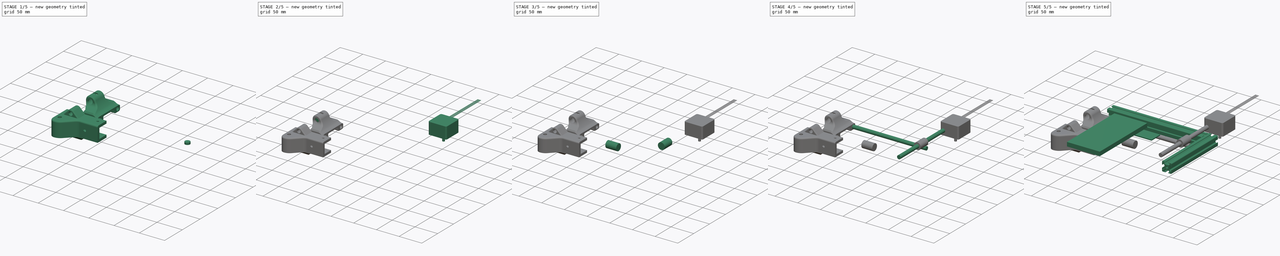
[diagram: build sequence overview — one tinted view per stage of 5, left to right]
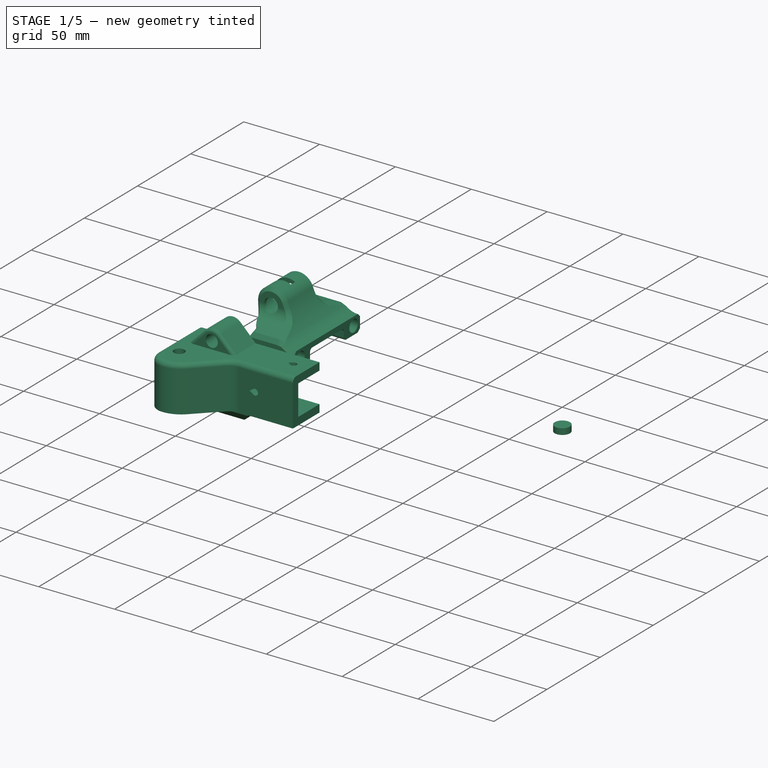
[diagram: stage 1 of 5 — iso view after this stage's code; geometry added in this stage tinted green]
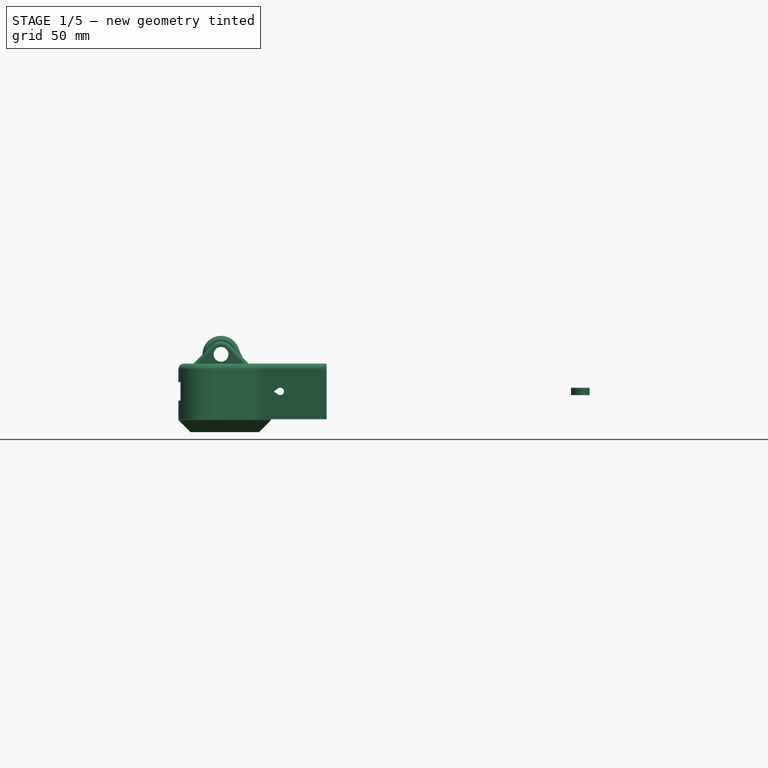
[diagram: stage 1 of 5 — front view after this stage's code; geometry added in this stage tinted green]
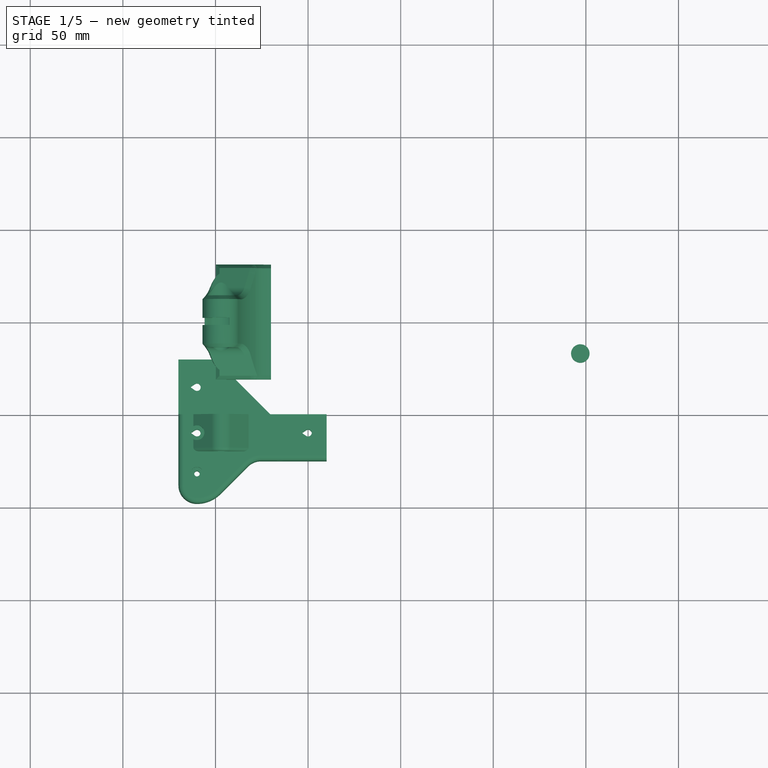
[diagram: stage 1 of 5 — top view after this stage's code; geometry added in this stage tinted green]
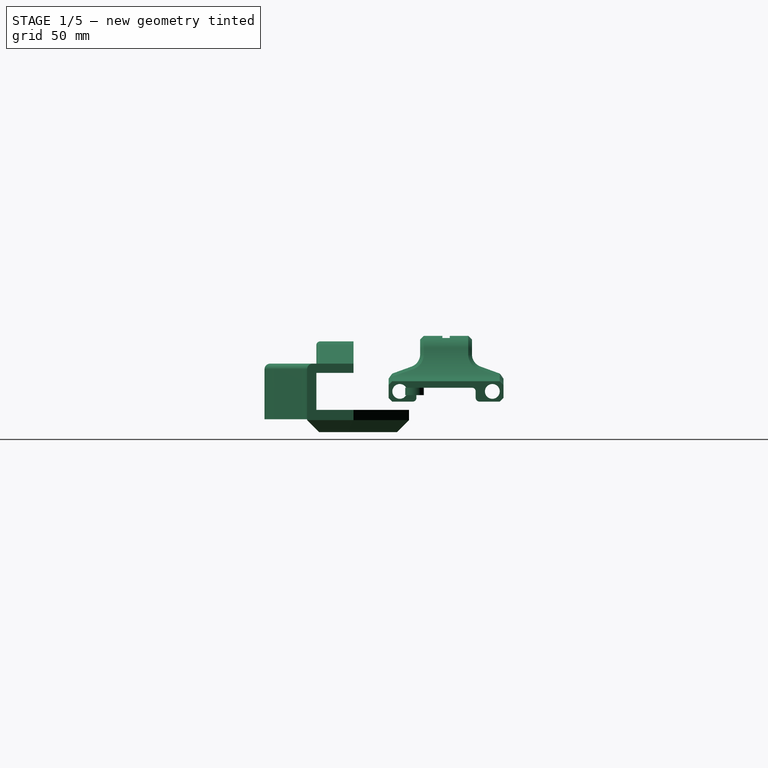
[diagram: stage 1 of 5 — right view after this stage's code; geometry added in this stage tinted green]
FCSTD DOCUMENT  (FreeCAD 0.16R4945 (Git))
Label: Assembly
License: All rights reserved
LicenseURL: http://en.wikipedia.org/wiki/All_rights_reserved
objects: Part::Mirroring×12, Part::Feature×6, App::DocumentObjectGroup×6, Part::Cylinder×5, Part::Box×2, Sketcher::SketchObject×2
note: 27 computed .brp shape members not serialized (recipe doc carries the construction recipe); baked Part::Feature solids carry a one-line shape summary decoded from their .brp

FEATURE [Sketcher::SketchObject] Sketch001  label="StringSection"
  Placement = pos=(-21,0,0) rot=(0.57735,0.57735,0.57735;2.0944rad)
  sketch-geometry (1):
    g0: Circle CenterX=6 CenterY=10 CenterZ=0 NormalX=0 NormalY=0 NormalZ=1 Radius=0.5
  constraints (3):
    c: DistanceY(g0) = 10
    c: DistanceX(g0) = 6
    c: Radius(g0) = 0.5
FEATURE [App::DocumentObjectGroup] Group  label="Base"
  Group = -> [Part__Mirroring,Part__Mirroring001]
FEATURE [App::DocumentObjectGroup] Group002  label="FishingString"
  Group = -> [Sketch,Sketch001]
FEATURE [App::DocumentObjectGroup] Group003  label="Motors"
  Group = -> [Part__Mirroring002]
FEATURE [App::DocumentObjectGroup] Group004  label="VisualReference"
  Group = -> [Part__Feature001]
FEATURE [Part::Cylinder] Cylinder004  label="623ZZ"
  Angle = 360
  Height = 4
  Placement = pos=(97,17,8) rot=(0,0,1;0rad)
  Radius = 5
FEATURE [Part::Mirroring] Part__Mirroring007  label="623ZZ (Mirror #8)"
  Base = (0,0,0)
  Normal = (0,1,0)
  Source = -> Cylinder004
FEATURE [App::DocumentObjectGroup] Group001  label="GuidingSystem"
  Group = -> [Part__Mirroring003,Part__Mirroring004,Part__Mirroring005,Part__Mirroring006,Part__Mirroring008,Part__Mirroring009]
FEATURE [Part::Feature] Pocket008001  label="Ycarriage"
  Placement = pos=(70,0,10) rot=(0,0,1;0rad)
  shape: bbox 37.5 x 62 x 35.5 mm, 93 faces (baked)
FEATURE [Part::Mirroring] Part__Mirroring010  label="Ycarriage (Mirror #11)"
  Base = (0,0,0)
  Normal = (1,0,0)
  Source = -> Pocket008001
FEATURE [Part::Feature] Pocket013001  label="IdlerHold"
  Placement = pos=(110,-60,10) rot=(0,0,1;0rad)
  shape: bbox 80.83 x 79.49 x 49.8 mm, 107 faces (baked)
FEATURE [Part::Mirroring] Part__Mirroring011  label="IdlerHold (Mirror #12)"
  Base = (0,0,0)
  Normal = (1,0,0)
  Source = -> Pocket013001
FEATURE [App::DocumentObjectGroup] Group005  label="Printable"
  Group = -> [Pocket008001,Part__Mirroring010,Pocket013001,Part__Mirroring011]
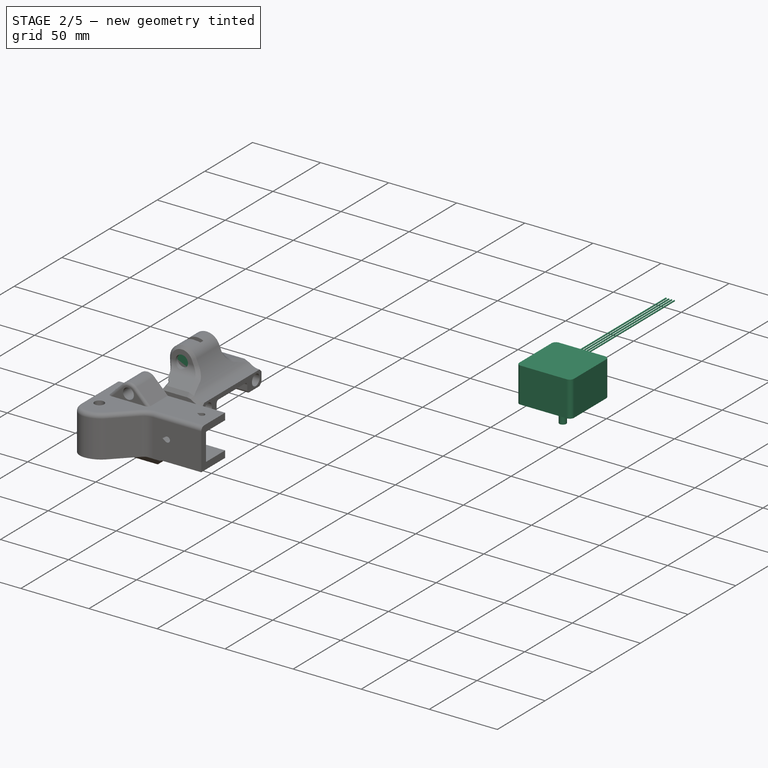
[diagram: stage 2 of 5 — iso view after this stage's code; geometry added in this stage tinted green]
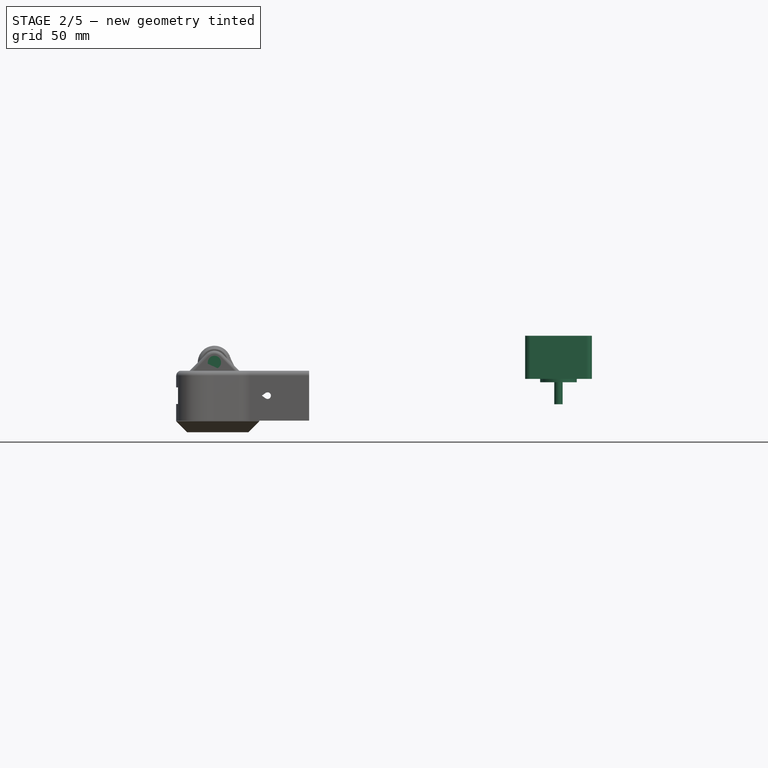
[diagram: stage 2 of 5 — front view after this stage's code; geometry added in this stage tinted green]
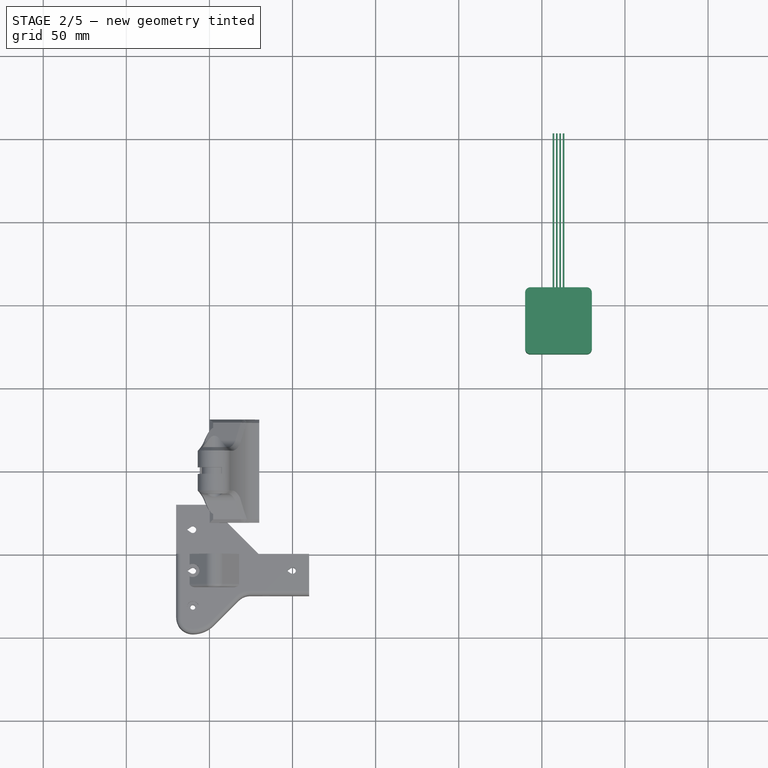
[diagram: stage 2 of 5 — top view after this stage's code; geometry added in this stage tinted green]
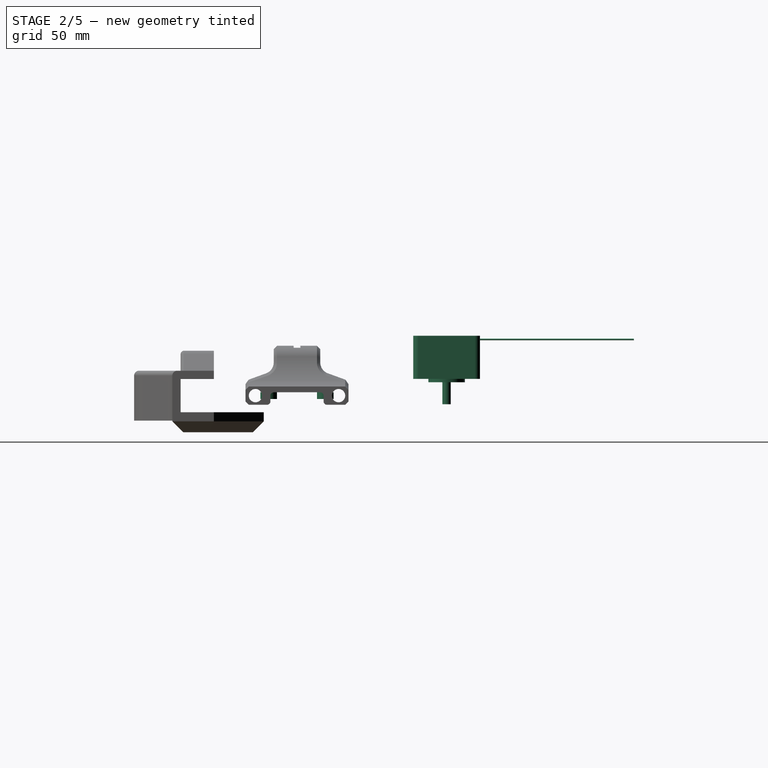
[diagram: stage 2 of 5 — right view after this stage's code; geometry added in this stage tinted green]
FEATURE [Part::Feature] Part__Feature001  label="BeverageCan"
  Placement = pos=(200,0,0) rot=(0,0,1;0rad)
  shape: bbox 66.1 x 66.1 x 115.2 mm, 53 faces (baked)
FEATURE [Part::Feature] Part__Feature002  label="4018X SNGL"
  Placement = pos=(-110,90,46) rot=(0,1,0;3.14159rad)
  shape: bbox 40.13 x 132.8 x 41.15 mm, 30 faces (baked)
FEATURE [Part::Mirroring] Part__Mirroring002  label="4018X SNGL (Mirror #3)"
  Base = (0,0,0)
  Normal = (1,0,0)
  Source = -> Part__Feature002
FEATURE [Part::Cylinder] Cylinder003  label="LM8UU001"
  Angle = 360
  Height = 24
  Placement = pos=(-97,12,30) rot=(1,0,0;1.5708rad)
  Radius = 7.5
FEATURE [Part::Mirroring] Part__Mirroring008  label="623ZZ (Mirror #9)"
  Base = (0,0,0)
  Normal = (1,0,0)
  Source = -> Cylinder004
FEATURE [Part::Mirroring] Part__Mirroring009  label="623ZZ (Mirror #10)"
  Base = (0,0,0)
  Normal = (1,0,0)
  Source = -> Part__Mirroring007
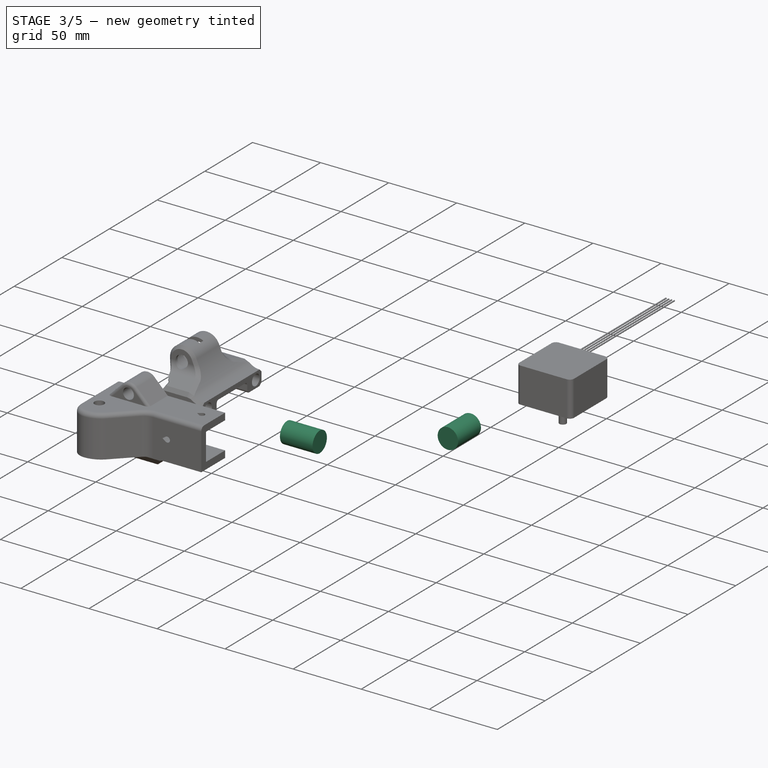
[diagram: stage 3 of 5 — iso view after this stage's code; geometry added in this stage tinted green]
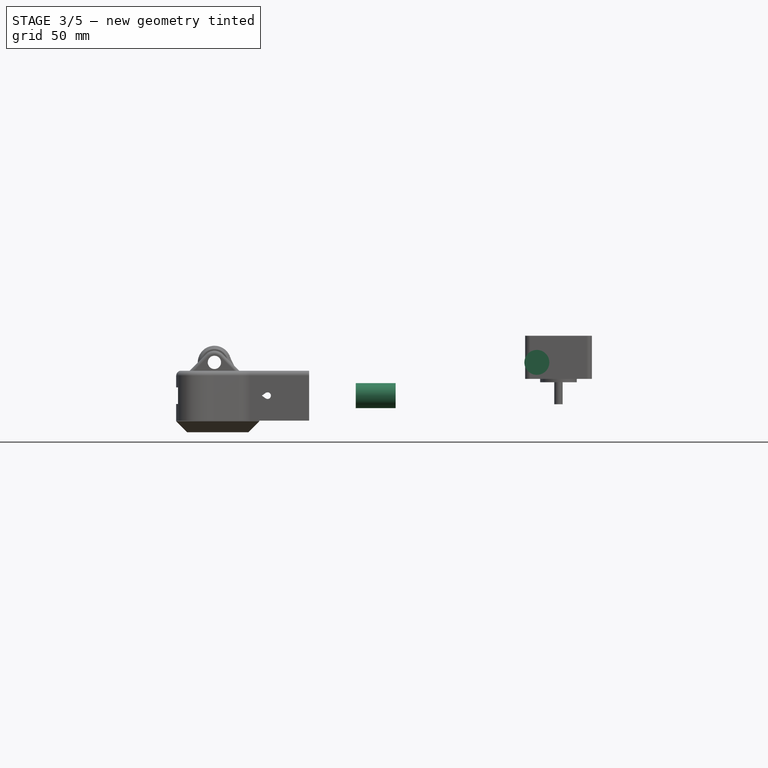
[diagram: stage 3 of 5 — front view after this stage's code; geometry added in this stage tinted green]
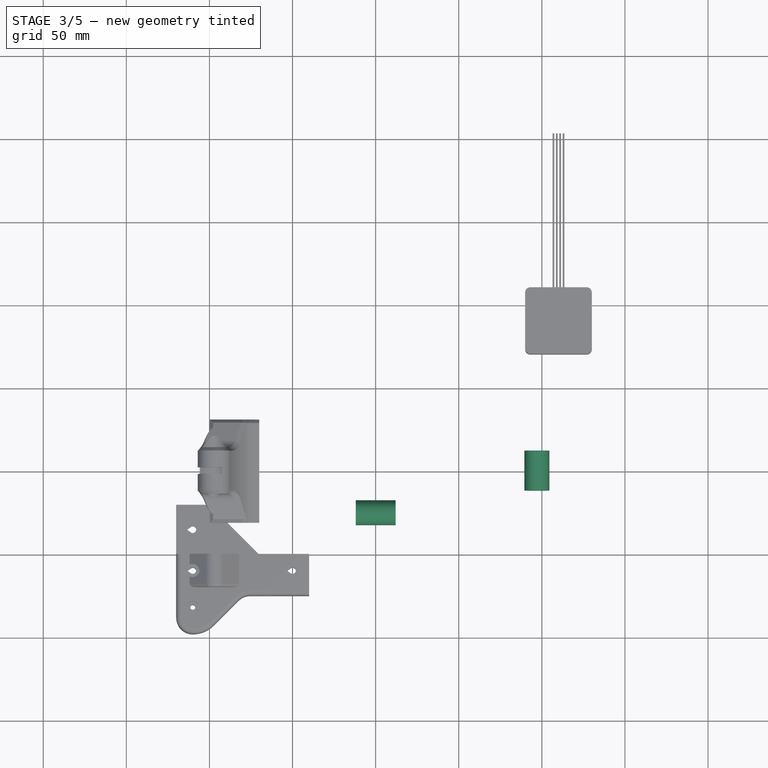
[diagram: stage 3 of 5 — top view after this stage's code; geometry added in this stage tinted green]
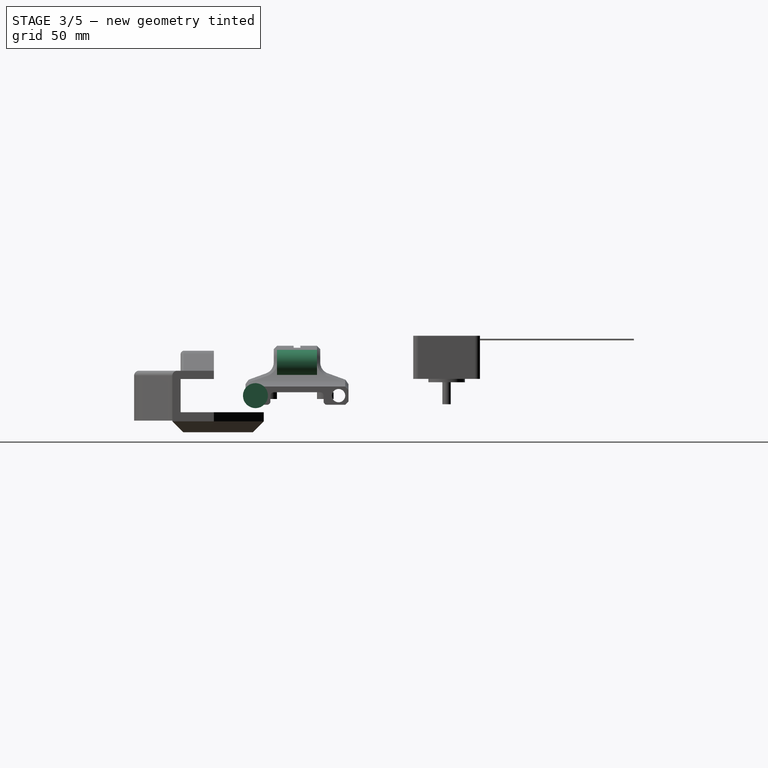
[diagram: stage 3 of 5 — right view after this stage's code; geometry added in this stage tinted green]
FEATURE [Sketcher::SketchObject] Sketch  label="StringPath"
  Placement = pos=(0,0,10) rot=(0,0,1;0rad)
  sketch-geometry (17):
    g0: ArcOfCircle CenterX=-110 CenterY=90 CenterZ=0 NormalX=0 NormalY=0 NormalZ=1 Radius=8 StartAngle=6.28318 EndAngle=9.42478
    g1: ArcOfCircle CenterX=110 CenterY=90 CenterZ=0 NormalX=0 NormalY=0 NormalZ=1 Radius=8 StartAngle=6.28319 EndAngle=9.42478
    g2: ArcOfCircle CenterX=110 CenterY=-82 CenterZ=0 NormalX=0 NormalY=0 NormalZ=1 Radius=8 StartAngle=3.14159 EndAngle=6.28319
    g3: ArcOfCircle CenterX=97 CenterY=-17 CenterZ=0 NormalX=0 NormalY=0 NormalZ=1 Radius=5 StartAngle=2.30718e-06 EndAngle=1.5708
    g4: ArcOfCircle CenterX=97 CenterY=17 CenterZ=0 NormalX=0 NormalY=0 NormalZ=1 Radius=5 StartAngle=4.71239 EndAngle=6.28319
    g5: ArcOfCircle CenterX=-97 CenterY=17 CenterZ=0 NormalX=0 NormalY=0 NormalZ=1 Radius=5 StartAngle=3.14159 EndAngle=4.71239
    g6: ArcOfCircle CenterX=-97 CenterY=-17 CenterZ=0 NormalX=0 NormalY=0 NormalZ=1 Radius=5 StartAngle=1.5708 EndAngle=3.14159
    g7: ArcOfCircle CenterX=-110 CenterY=-82 CenterZ=0 NormalX=0 NormalY=0 NormalZ=1 Radius=8 StartAngle=3.14159 EndAngle=6.28319
    g8: LineSegment StartX=-118 StartY=90 StartZ=0 EndX=-118 EndY=-82 EndZ=0
    g9: LineSegment StartX=-102 StartY=-17 StartZ=0 EndX=-102 EndY=-82 EndZ=0
    g10: LineSegment StartX=-97 StartY=-12 StartZ=0 EndX=97 EndY=-12 EndZ=0
    g11: LineSegment StartX=-102 StartY=90 StartZ=0 EndX=-102 EndY=17 EndZ=0
    g12: LineSegment StartX=102 StartY=90 StartZ=0 EndX=102 EndY=17 EndZ=0
    g13: LineSegment StartX=118 StartY=90 StartZ=0 EndX=118 EndY=-82 EndZ=0
    g14: LineSegment StartX=102 StartY=-82 StartZ=0 EndX=102 EndY=-17 EndZ=0
    g15: LineSegment StartX=-97 StartY=12 StartZ=0 EndX=-20.947 EndY=12 EndZ=0
    g16: LineSegment StartX=14.5397 StartY=12 StartZ=0 EndX=97 EndY=12 EndZ=0
  constraints (49):
    c: Equal(g0,g1)
    c: Symmetric(g0,g1,g-2)
    c: Symmetric(g2,g7,g-2)
    c: Equal(g7,g2)
    c: Symmetric(g6,g3,g-2)
    c: Symmetric(g5,g4,g-2)
    c: DistanceX(g2) = 110
    c: DistanceX(g1) = 110
    c: DistanceY(g1) = 90
    c: DistanceY(g2) = -82
    c: Coincident(g13,g1)
    c: Coincident(g13,g2)
    c: Coincident(g14,g2)
    c: Coincident(g14,g3)
    c: Coincident(g3,g10)
    c: Coincident(g4,g12)
    c: Coincident(g6,g10)
    c: Coincident(g6,g9)
    c: Coincident(g7,g9)
    c: Coincident(g7,g8)
    c: Coincident(g8,g0)
    c: Coincident(g11,g0)
    c: Coincident(g12,g1)
    c: Coincident(g5,g11)
    c: Coincident(g16,g4)
    c: Coincident(g15,g5)
    c: Vertical(g8)
    c: Vertical(g13)
    c: Vertical(g12)
    c: Vertical(g11)
    c: Vertical(g9)
    c: Vertical(g14)
    c: Horizontal(g10)
    c: Horizontal(g15)
    c: Horizontal(g16)
    c: PointOnObject(g15,g16)
    c: Tangent(g5,g15)
    c: Tangent(g11,g0)
    c: Tangent(g9,g7)
    c: Tangent(g9,g6)
    c: Tangent(g10,g3)
    c: Tangent(g16,g4)
    c: Radius(g0) = 8
    c: Symmetric(g5,g6,g-1)
    c: Equal(g6,g5)
    c: Tangent(g1,g13)
    c: Tangent(g8,g0)
    c: Radius(g4) = 5
    c: DistanceY(g3,g4) = 24
FEATURE [Part::Cylinder] Cylinder002  label="LM8UU"
  Angle = 360
  Height = 24
  Placement = pos=(-12,25,10) rot=(0,1,0;1.5708rad)
  Radius = 7.5
FEATURE [Part::Mirroring] Part__Mirroring005  label="LM8UU (Mirror #6)"
  Base = (0,0,0)
  Normal = (0,1,0)
  Source = -> Cylinder002
FEATURE [Part::Mirroring] Part__Mirroring006  label="LM8UU001 (Mirror #7)"
  Base = (0,0,0)
  Normal = (1,0,0)
  Source = -> Cylinder003
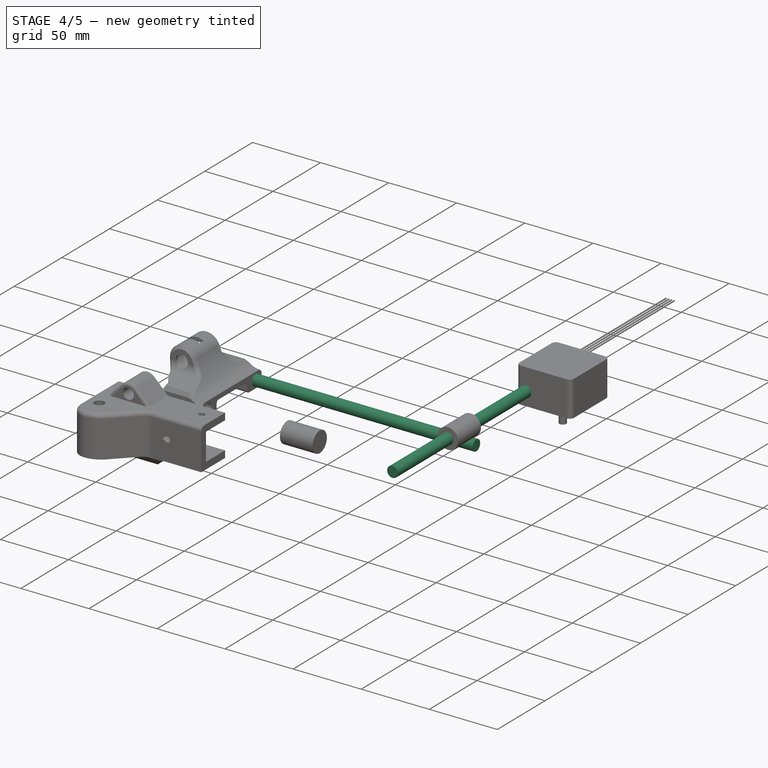
[diagram: stage 4 of 5 — iso view after this stage's code; geometry added in this stage tinted green]
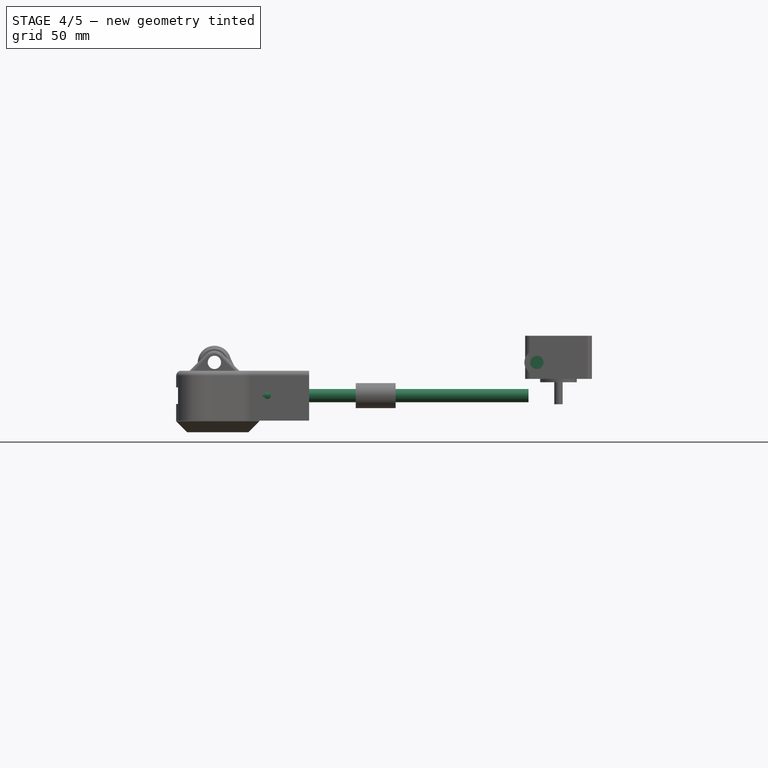
[diagram: stage 4 of 5 — front view after this stage's code; geometry added in this stage tinted green]
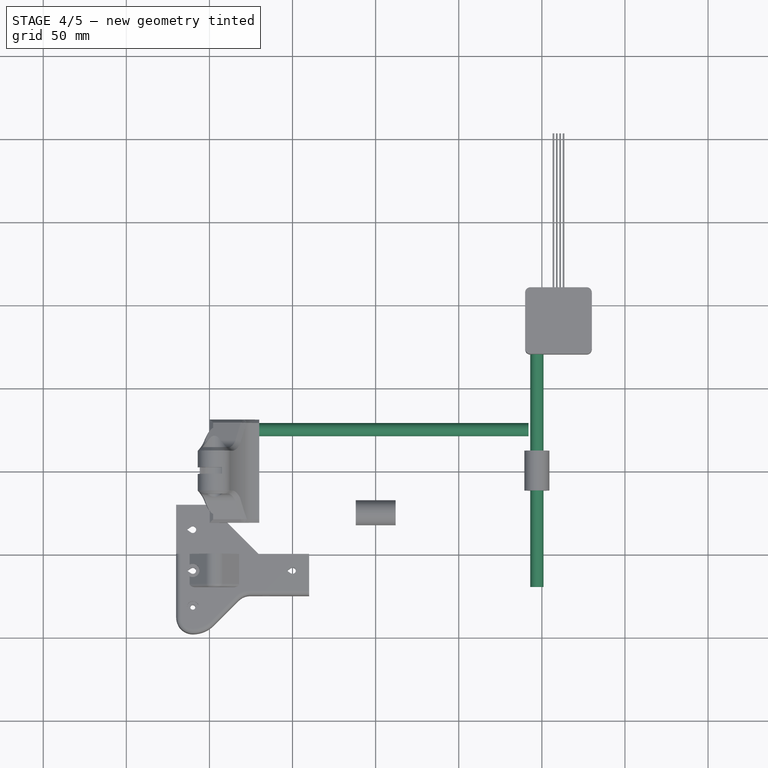
[diagram: stage 4 of 5 — top view after this stage's code; geometry added in this stage tinted green]
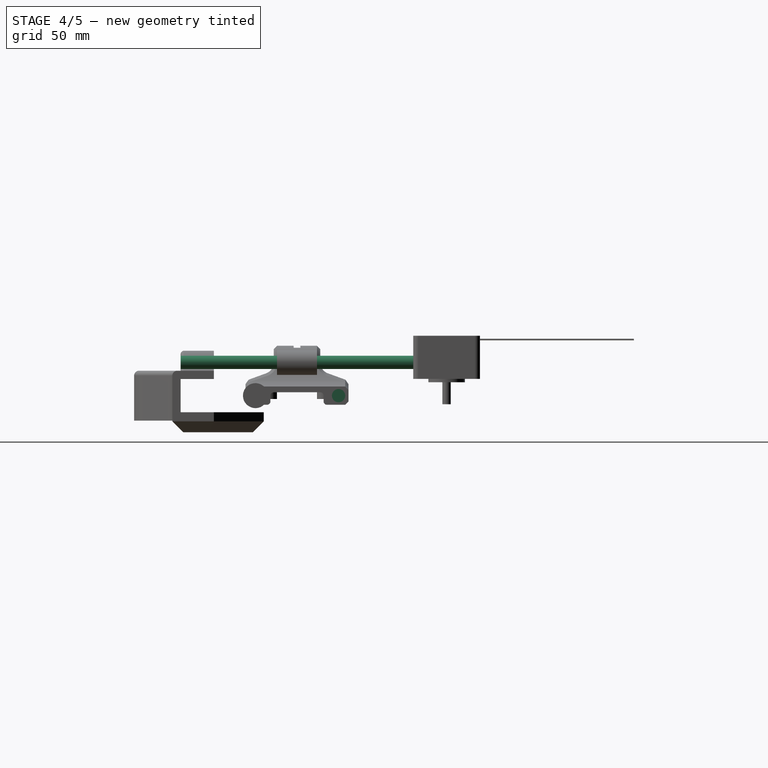
[diagram: stage 4 of 5 — right view after this stage's code; geometry added in this stage tinted green]
FEATURE [Part::Cylinder] Cylinder  label="YBar"
  Angle = 360
  Height = 140
  Placement = pos=(-97,70,30) rot=(1,0,0;1.5708rad)
  Radius = 4
FEATURE [Part::Cylinder] Cylinder001  label="XBar"
  Angle = 360
  Height = 184
  Placement = pos=(-92,-25,10) rot=(0,1,0;1.5708rad)
  Radius = 4
FEATURE [Part::Mirroring] Part__Mirroring003  label="XBar (Mirror #4)"
  Base = (0,0,0)
  Normal = (0,1,0)
  Source = -> Cylinder001
FEATURE [Part::Mirroring] Part__Mirroring004  label="YBar (Mirror #5)"
  Base = (0,0,0)
  Normal = (1,0,0)
  Source = -> Cylinder
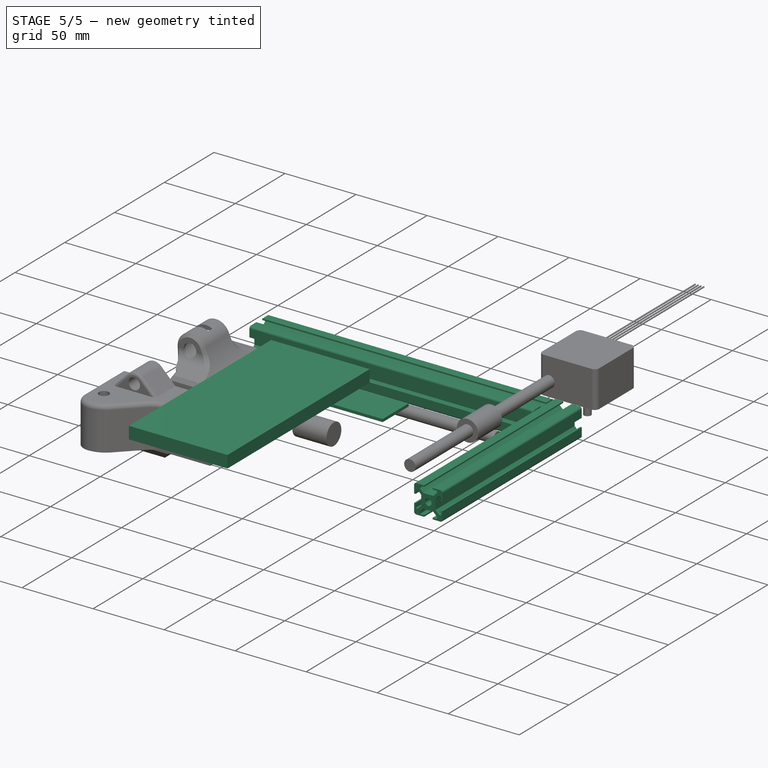
[diagram: stage 5 of 5 — iso view after this stage's code; geometry added in this stage tinted green]
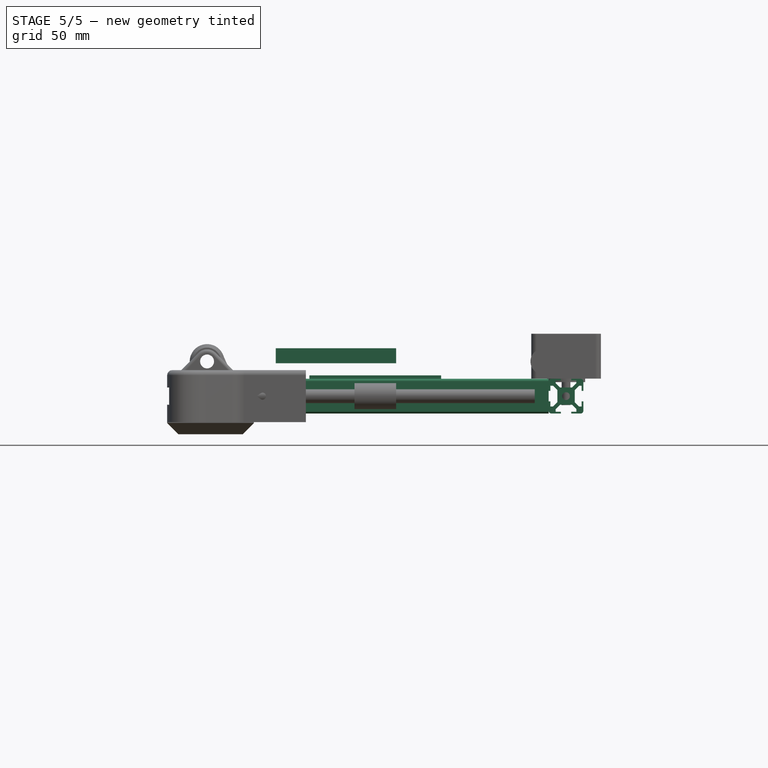
[diagram: stage 5 of 5 — front view after this stage's code; geometry added in this stage tinted green]
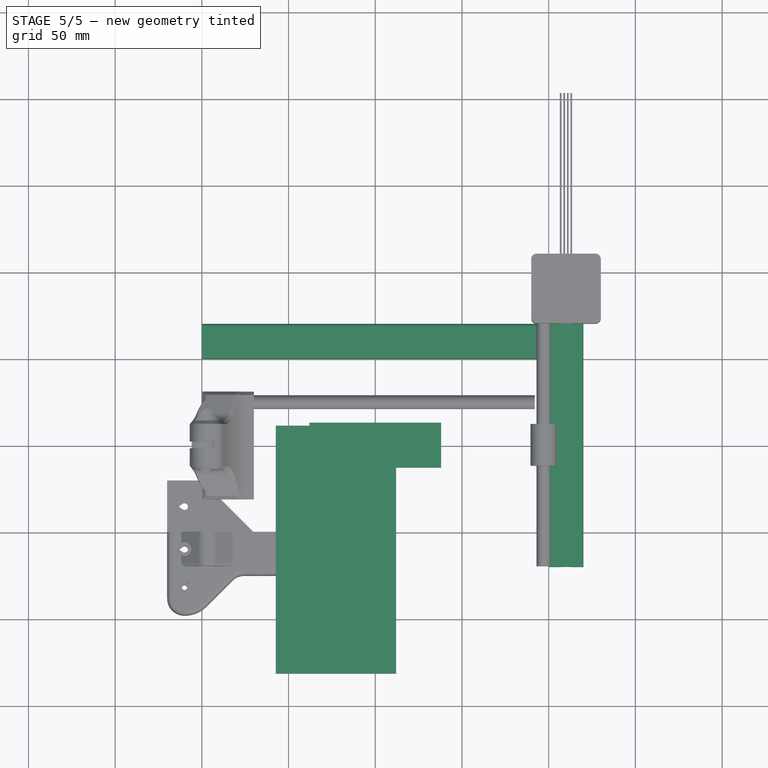
[diagram: stage 5 of 5 — top view after this stage's code; geometry added in this stage tinted green]
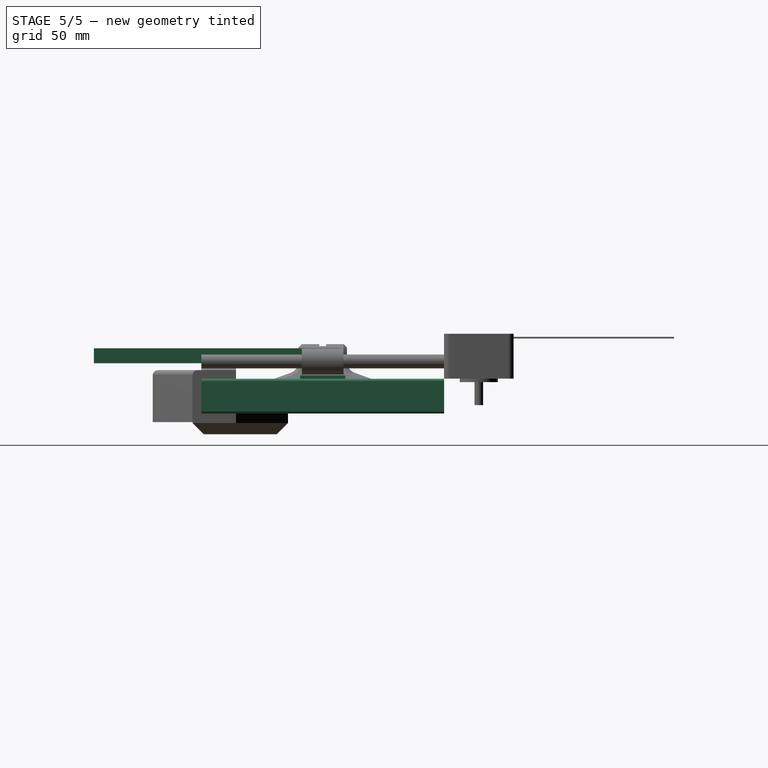
[diagram: stage 5 of 5 — right view after this stage's code; geometry added in this stage tinted green]
FEATURE [Part::Feature] Fillet002  label="T slot extrusion 20x20x200.001"
  Placement = pos=(-100,-70,0) rot=(0,-1,0;1.5708rad)
  shape: bbox 200 x 20 x 20 mm, 51 faces (baked)
FEATURE [Part::Feature] Fillet001001  label="T slot extrusion 20x20x140.001"
  Placement = pos=(-120,-70,0) rot=(1,0,0;1.5708rad)
  shape: bbox 20 x 140 x 20 mm, 51 faces (baked)
FEATURE [Part::Mirroring] Part__Mirroring  label="T slot extrusion 20x20x200.001 (Mirror #1)"
  Base = (0,0,0)
  Normal = (0,1,0)
  Source = -> Fillet002
FEATURE [Part::Mirroring] Part__Mirroring001  label="T slot extrusion 20x20x140.001 (Mirror #2)"
  Base = (0,0,0)
  Normal = (1,0,0)
  Source = -> Fillet001001
FEATURE [Part::Box] Box  label="Sample"
  Height = 2
  Length = 76
  Placement = pos=(-38,-13,20) rot=(0,0,1;0rad)
  Width = 26
FEATURE [Part::Box] Box001  label="bq Aquaris M5 Phone"
  Height = 8.6
  Length = 69.4
  Placement = pos=(12,11,29) rot=(0,0,1;3.14159rad)
  Width = 143
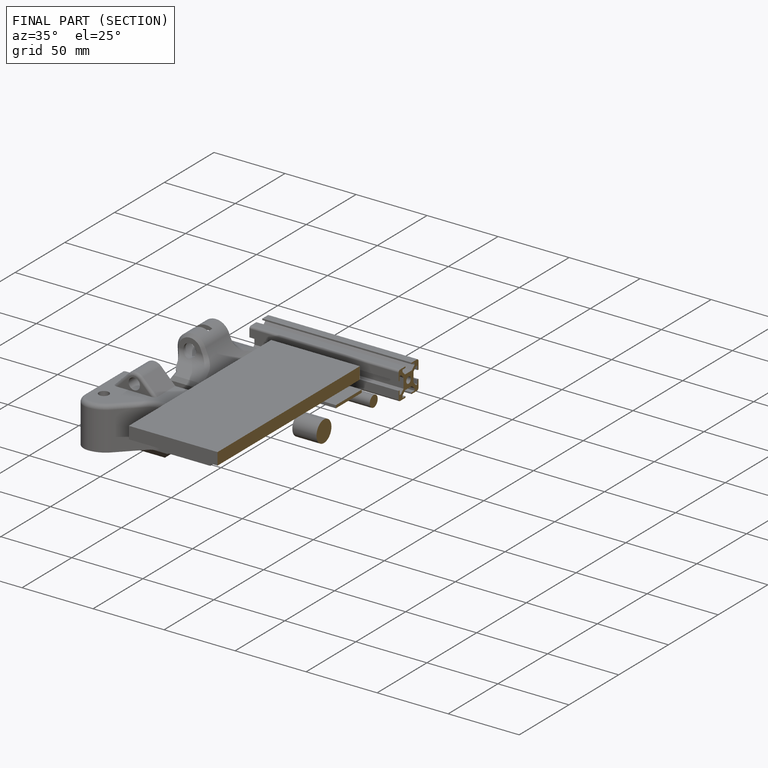
[diagram: finished part — half-section view (interior)]
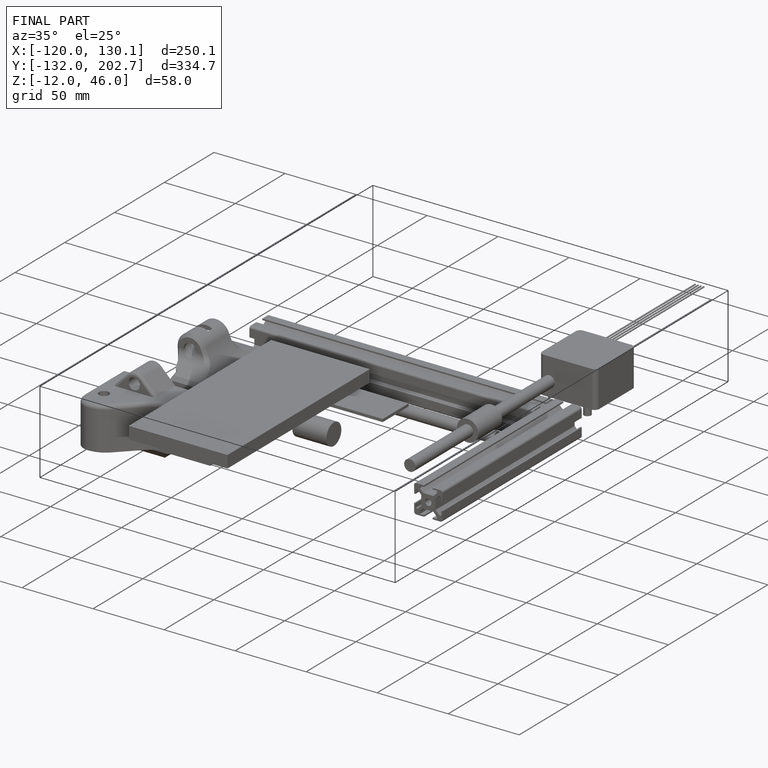
[diagram: finished part — iso view with bounding-box wireframe]
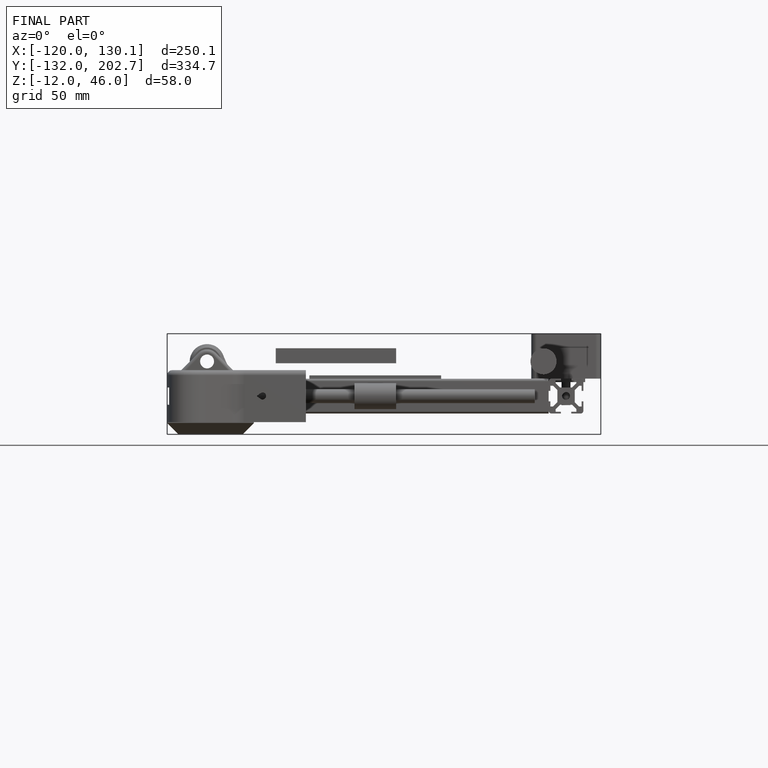
[diagram: finished part — front view with bounding-box wireframe]
